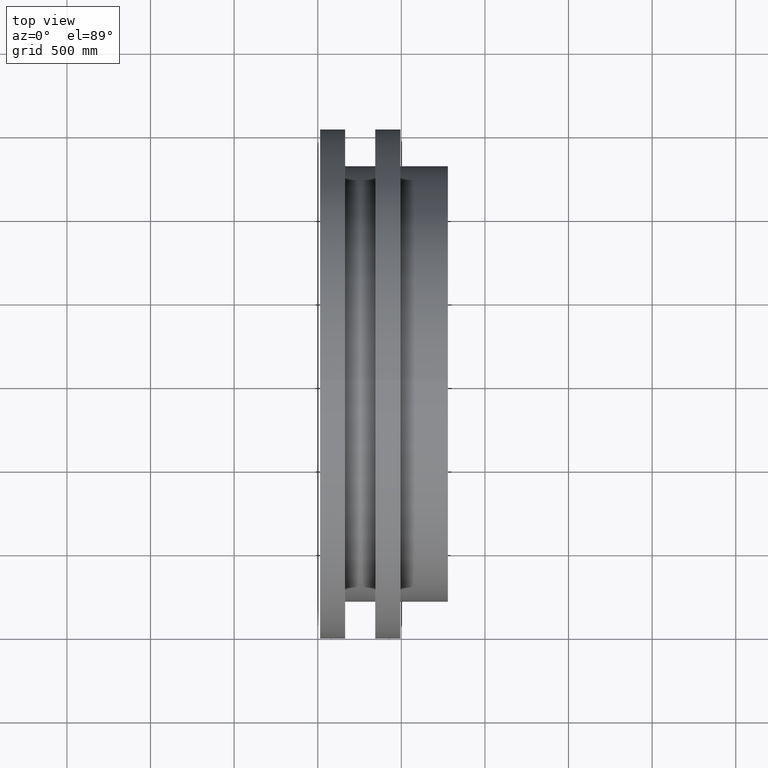
[diagram: clean part render]
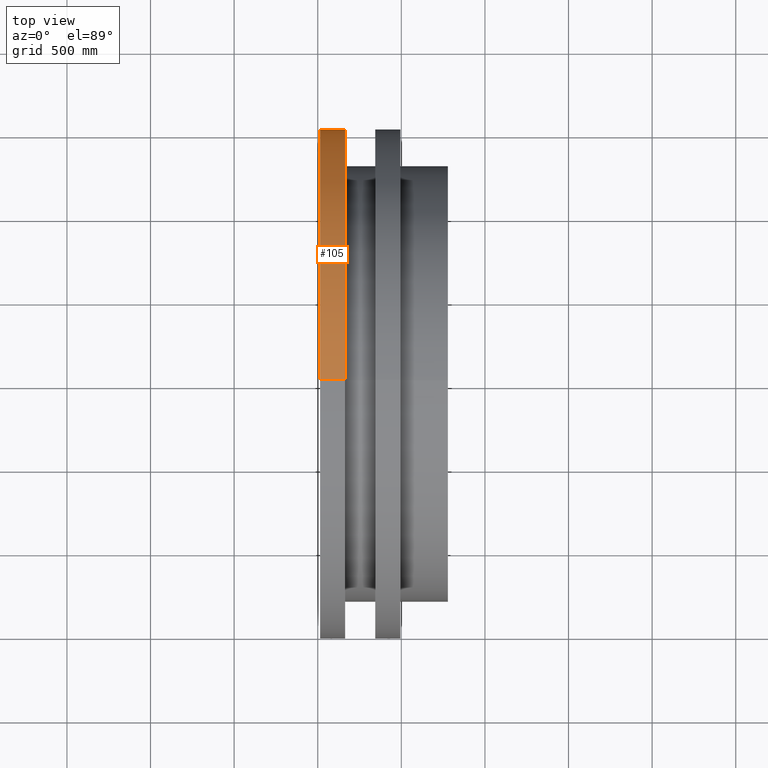
[diagram: same view with one face highlighted and labeled with its STEP entity id]
A machine part, top view. The second image highlights one B-rep face of the part: STEP entity #105.
In plain terms, the highlighted cylindrical surface (partial cylindrical patch) has radius 1525 mm, axis along (1, 0, 0).
Its self-contained STEP definition (entity closure, byte-faithful):
#5 = AXIS2_PLACEMENT_3D ( 'NONE', #648, #521, #463 ) ;
#13 = CIRCLE ( 'NONE', #572, 1525.000000000000000 ) ;
#32 = ORIENTED_EDGE ( 'NONE', *, *, #201, .T. ) ;
#36 = ORIENTED_EDGE ( 'NONE', *, *, #361, .F. ) ;
#49 = EDGE_CURVE ( 'NONE', #489, #332, #250, .T. ) ;
#70 = ORIENTED_EDGE ( 'NONE', *, *, #49, .T. ) ;
#105 = ADVANCED_FACE ( 'NONE', ( #578 ), #459, .T. ) ;
#132 = CARTESIAN_POINT ( 'NONE',  ( -1389.999999999999773, 114.4108509701294309, -1596.231616082000301 ) ) ;
#144 = DIRECTION ( 'NONE',  ( 1.000000000000000000, 0.000000000000000000, 0.000000000000000000 ) ) ;
#145 = VERTEX_POINT ( 'NONE', #646 ) ;
#149 = CARTESIAN_POINT ( 'NONE',  ( -1389.999999999999773, 114.4108509701294309, -71.23161608200025796 ) ) ;
#201 = EDGE_CURVE ( 'NONE', #332, #145, #327, .T. ) ;
#208 = VECTOR ( 'NONE', #538, 1000.000000000000000 ) ;
#250 = CIRCLE ( 'NONE', #647, 1525.000000000000000 ) ;
#274 = DIRECTION ( 'NONE',  ( 0.000000000000000000, 0.000000000000000000, -1.000000000000000000 ) ) ;
#292 = CARTESIAN_POINT ( 'NONE',  ( -1389.999999999999773, 114.4108509701294309, -1596.231616082000301 ) ) ;
#295 = ORIENTED_EDGE ( 'NONE', *, *, #522, .F. ) ;
#304 = DIRECTION ( 'NONE',  ( 1.000000000000000000, 0.000000000000000000, 0.000000000000000000 ) ) ;
#321 = CARTESIAN_POINT ( 'NONE',  ( -1239.999999999999773, 114.4108509701294309, -71.23161608200025796 ) ) ;
#324 = CARTESIAN_POINT ( 'NONE',  ( -1389.999999999999773, 114.4108509701296157, 1453.768383917999472 ) ) ;
#327 = LINE ( 'NONE', #324, #208 ) ;
#332 = VERTEX_POINT ( 'NONE', #371 ) ;
#361 = EDGE_CURVE ( 'NONE', #381, #145, #13, .T. ) ;
#371 = CARTESIAN_POINT ( 'NONE',  ( -1389.999999999999773, 114.4108509701296157, 1453.768383917999472 ) ) ;
#377 = EDGE_LOOP ( 'NONE', ( #70, #32, #36, #295 ) ) ;
#381 = VERTEX_POINT ( 'NONE', #479 ) ;
#406 = DIRECTION ( 'NONE',  ( 0.000000000000000000, 0.000000000000000000, -1.000000000000000000 ) ) ;
#440 = VECTOR ( 'NONE', #144, 1000.000000000000000 ) ;
#443 = LINE ( 'NONE', #292, #440 ) ;
#459 = CYLINDRICAL_SURFACE ( 'NONE', #5, 1525.000000000000000 ) ;
#463 = DIRECTION ( 'NONE',  ( 0.000000000000000000, 0.000000000000000000, -1.000000000000000000 ) ) ;
#479 = CARTESIAN_POINT ( 'NONE',  ( -1239.999999999999773, 114.4108509701294309, -1596.231616082000301 ) ) ;
#489 = VERTEX_POINT ( 'NONE', #132 ) ;
#521 = DIRECTION ( 'NONE',  ( 1.000000000000000000, 0.000000000000000000, 0.000000000000000000 ) ) ;
#522 = EDGE_CURVE ( 'NONE', #489, #381, #443, .T. ) ;
#535 = DIRECTION ( 'NONE',  ( 1.000000000000000000, 0.000000000000000000, 0.000000000000000000 ) ) ;
#538 = DIRECTION ( 'NONE',  ( 1.000000000000000000, 0.000000000000000000, 0.000000000000000000 ) ) ;
#572 = AXIS2_PLACEMENT_3D ( 'NONE', #321, #535, #274 ) ;
#578 = FACE_OUTER_BOUND ( 'NONE', #377, .T. ) ;
#646 = CARTESIAN_POINT ( 'NONE',  ( -1239.999999999999773, 114.4108509701296157, 1453.768383917999472 ) ) ;
#647 = AXIS2_PLACEMENT_3D ( 'NONE', #149, #304, #406 ) ;
#648 = CARTESIAN_POINT ( 'NONE',  ( -1389.999999999999773, 114.4108509701294309, -71.23161608200025796 ) ) ;